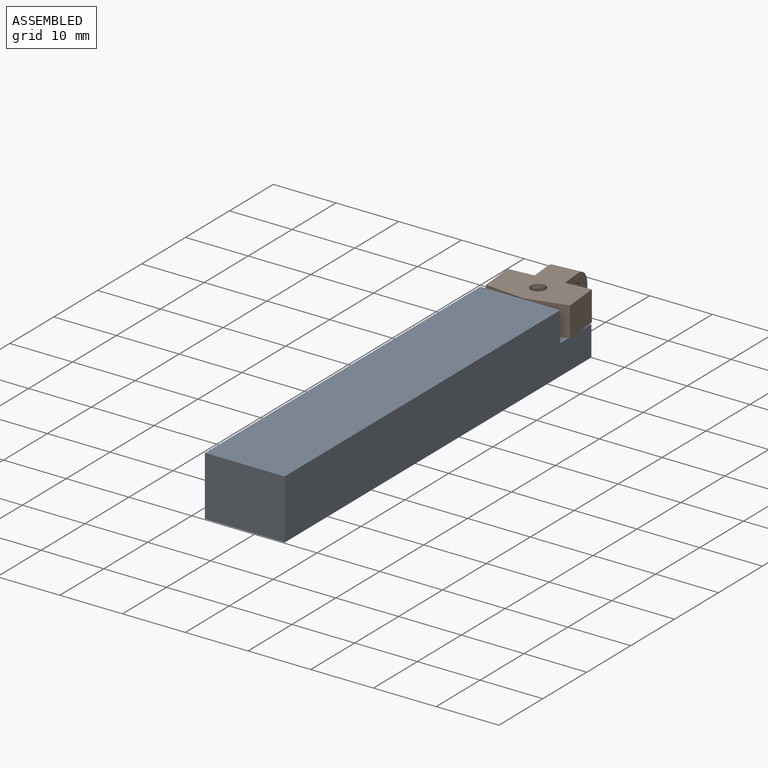
[diagram: assembled view]
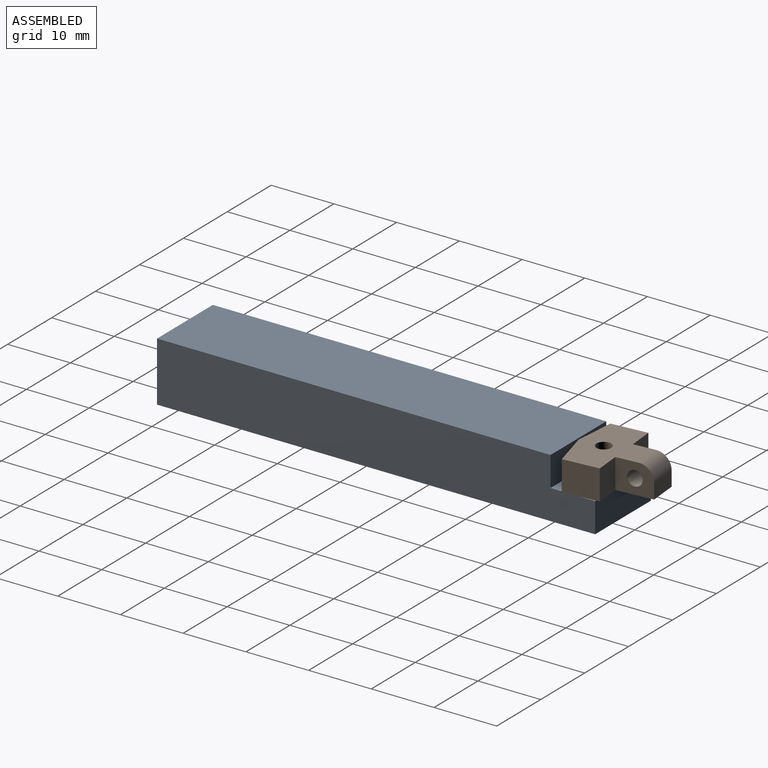
[diagram: assembled view, second angle]
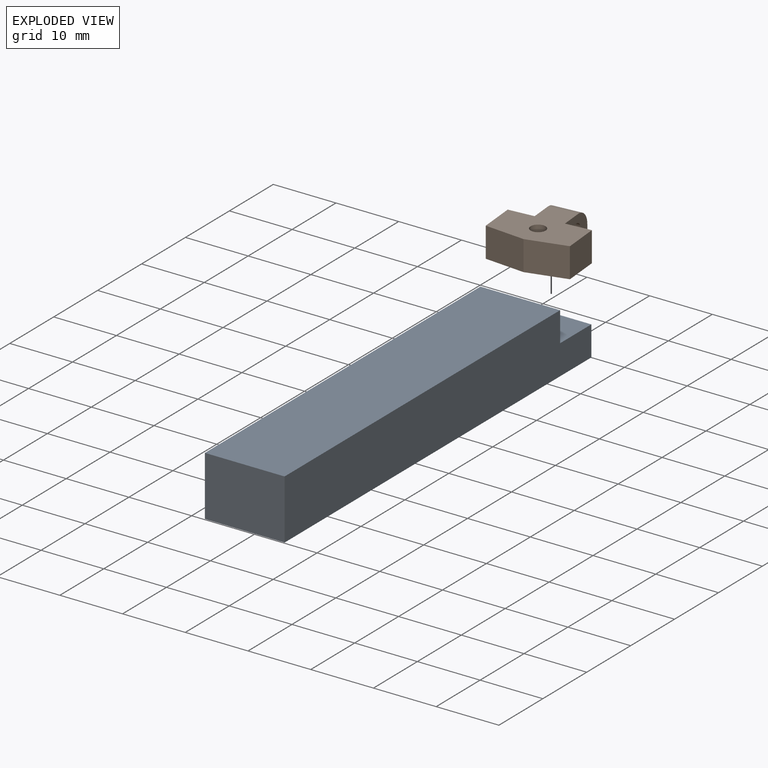
[diagram: exploded view]
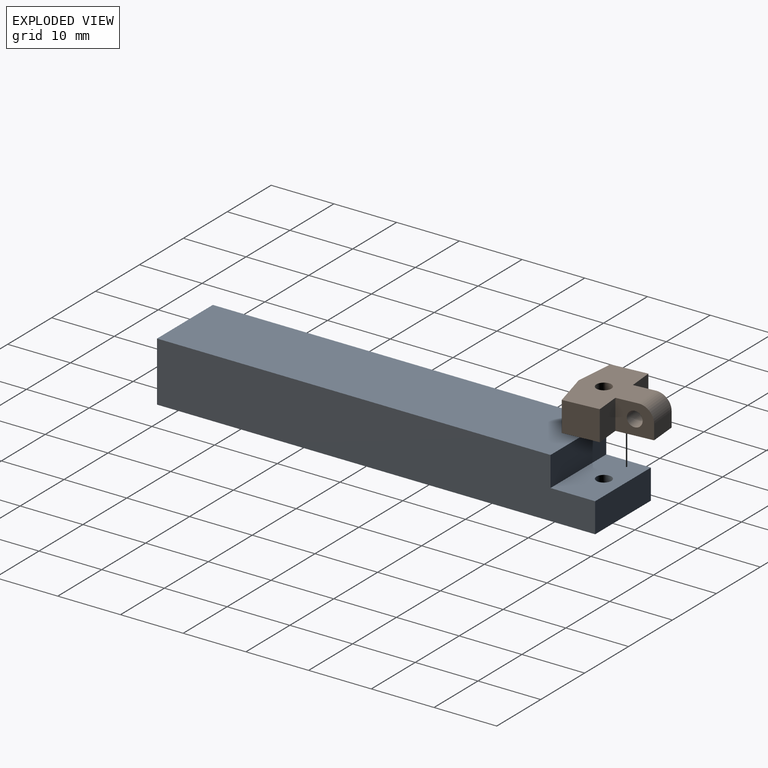
[diagram: exploded view, second angle]
ASSEMBLY  parts=2 mates=2
PART A: 9 faces, bbox 12.7x69.9x9.5 mm
  f0: plane 12.7x4.76mm, normal (0,1,0), area 60.5mm2, adj f1,f3,f5,f6
  f1: plane 69.85x9.53mm, normal (-1,0,0), area 631.5mm2, adj f0,f2,f4,f5,f6,f7
  f2: plane 12.7x9.53mm, normal (0,-1,0), area 121mm2, adj f1,f3,f4,f5
  f3: plane 69.85x9.53mm, normal (1,0,0), area 631.5mm2, adj f0,f2,f4,f5,f6,f7
  f4: plane 62.74x12.7mm, normal (0,0,1), area 796.8mm2, adj f1,f2,f3,f7
  f5: plane 69.85x12.7mm, normal (0,0,-1), area 882.6mm2, adj f0,f1,f2,f3,f8
  f6: plane 12.7x7.11mm, normal (0,0,1), area 85.9mm2, adj f0,f1,f3,f7,f8
  f7: plane 12.7x4.76mm, normal (0,1,0), area 60.5mm2, adj f1,f3,f4,f6
  f8: cylinder r=1.19mm len=4.76mm, axis (0,0,1), area 35.6mm2, adj f5,f6
PART B: 14 faces, bbox 12.7x12.7x4.8 mm
  f0: plane 6.35x4.76mm, normal (0.17,-0.98,0), area 30.7mm2, adj f1,f8,f9,f10
  f1: plane 5.74x4.76mm, normal (1,0,0), area 27.3mm2, adj f0,f2,f9,f10
  f2: plane 4.76x4.06mm, normal (0,1,0), area 19.4mm2, adj f1,f3,f9,f10
  f3: plane 5.84x4.76mm, normal (1,0,0), area 22.2mm2, adj f2,f4,f9,f10,f11,f13
  f4: plane 4.57x2.38mm, normal (0,1,0), area 10.9mm2, adj f3,f5,f10,f13
  f5: plane 5.84x4.76mm, normal (-1,0,0), area 22.2mm2, adj f4,f6,f9,f10,f11,f13
  f6: plane 4.76x4.06mm, normal (0,1,0), area 19.4mm2, adj f5,f7,f9,f10
  f7: plane 5.74x4.76mm, normal (-1,0,0), area 27.3mm2, adj f6,f8,f9,f10
  f8: plane 6.35x4.76mm, normal (-0.17,-0.98,0), area 30.7mm2, adj f0,f7,f9,f10
  f9: plane 12.7x10.32mm, normal (0,0,1), area 91.4mm2, adj f0,f1,f2,f3,f5,f6,f7,f8
  f10: plane 12.7x12.7mm, normal (0,0,-1), area 102.2mm2, adj f0,f1,f2,f3,f4,f5,f6,f7
  f11: cylinder r=1.19mm len=4.57mm, axis (1,0,0), area 34.2mm2, adj f3,f5
  f12: cylinder r=1.19mm len=4.76mm, axis (0,0,1), area 35.6mm2, adj f9,f10
  f13: cylinder r=2.38mm len=4.57mm, axis (1,0,0), area 17.1mm2, adj f3,f4,f5,f9
PLACE A t=(3.44,-11.88,3.06)mm
PLACE B rot(axis=(0,0,1),5deg) t=(10.12,51.13,7.83)mm
MATE planar B.f10 <-> A.f6  axis (0,0,-1) through (7.25,57.76,7.83)mm
MATE cylindrical A.f8 <-> B.f12  axis (0,0,1) through (9.79,54.93,7.83)mm
